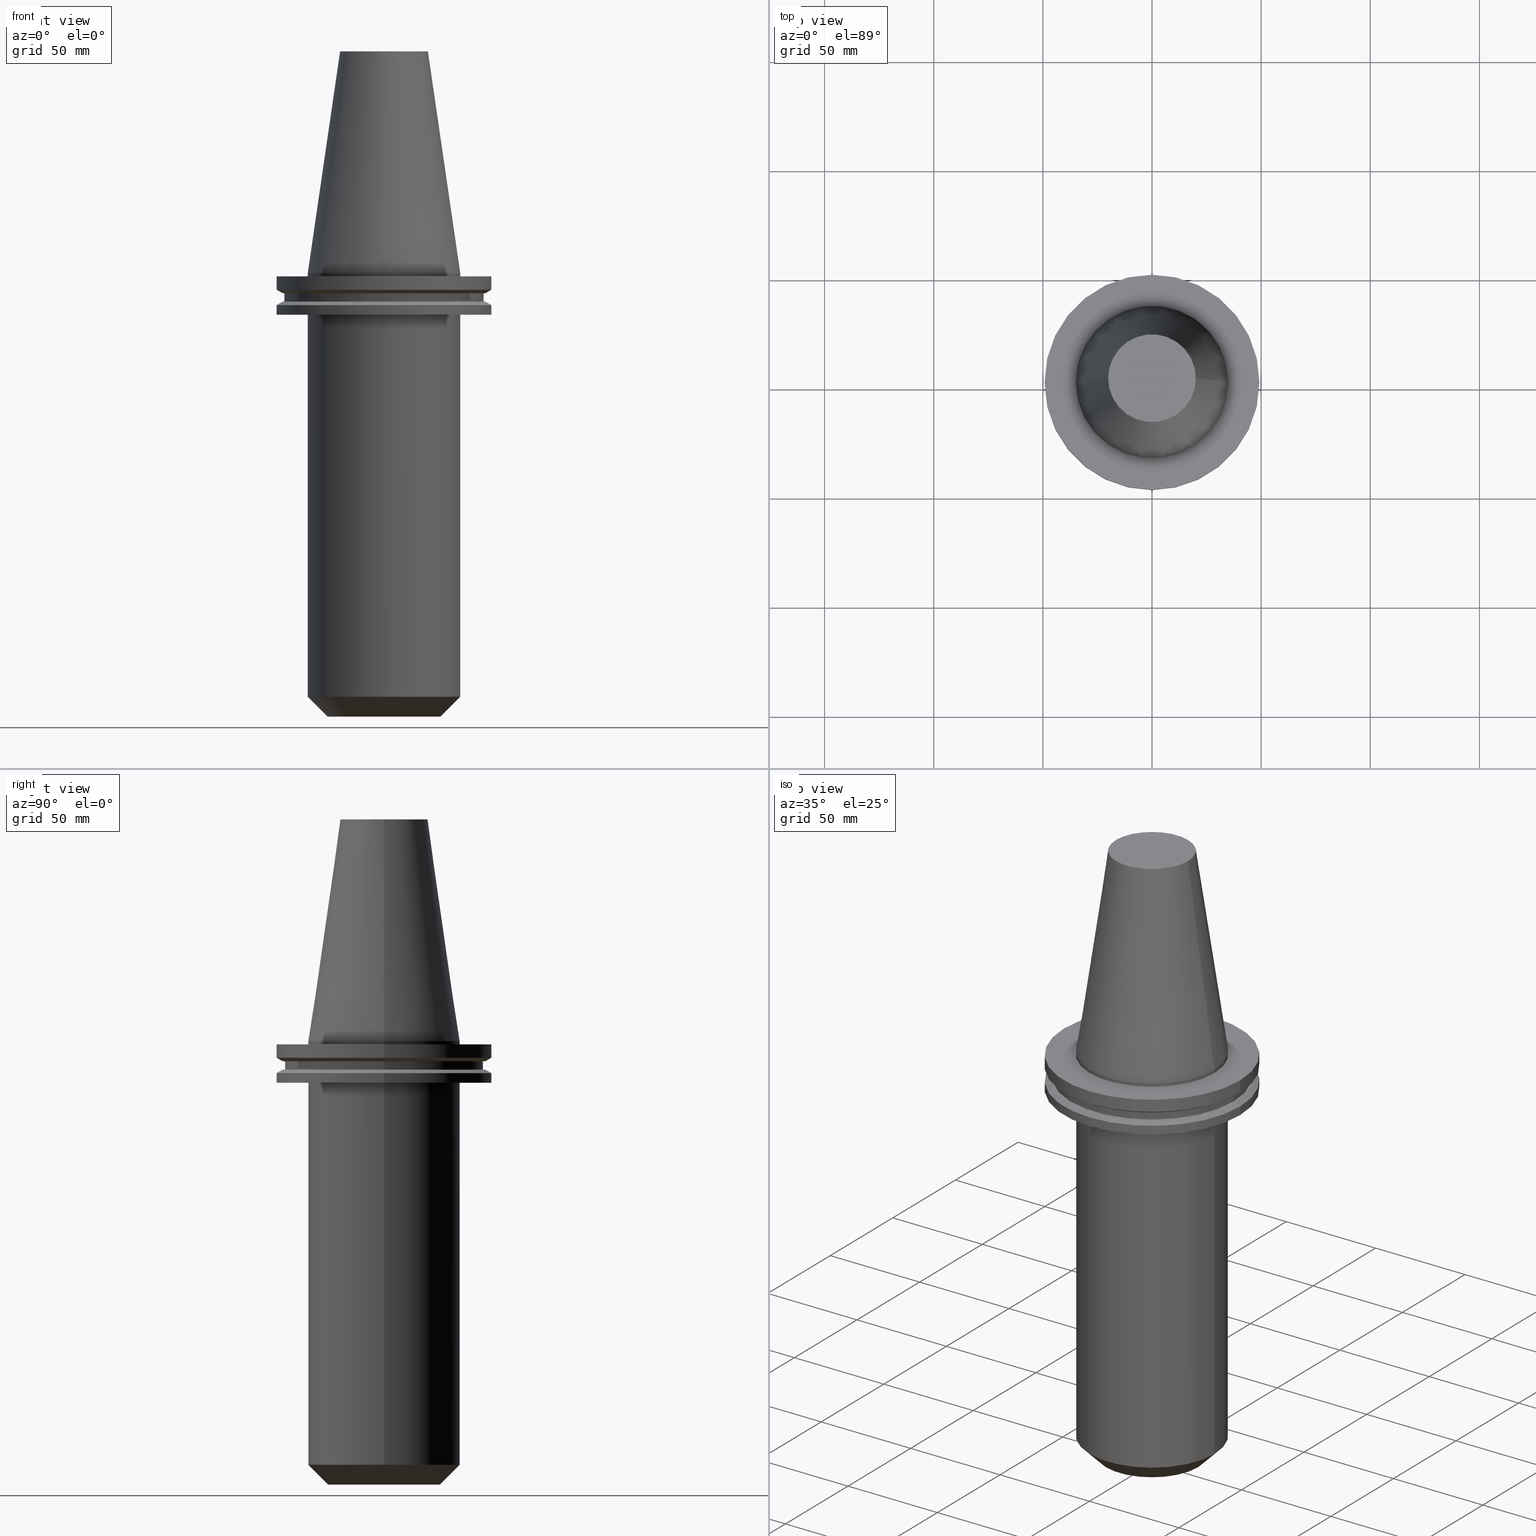
[diagram: canonical four-view strip — front | top / right | iso, engineering-drawing reading convention]
A machine part, canonical four-view strip (front | top / right | iso — engineering-drawing reading convention). The complete STEP part file that produces these views, byte-faithful:
ISO-10303-21;
HEADER;
FILE_DESCRIPTION (( 'STEP AP203' ),
    '1' );
FILE_NAME ('BCV50-EM1_250-8.stp',
    '2022-03-03T16:47:49',
    ( '' ),
    ( '' ),
    'SwSTEP 2.0',
    'SolidWorks 2021',
    '' );
FILE_SCHEMA (( 'CONFIG_CONTROL_DESIGN' ));
ENDSEC;

DATA;
#1 = CARTESIAN_POINT ( 'NONE',  ( 0.000000000000000000, 49.21499999999999631, -1.499999999999992895 ) ) ;
#2 = DIRECTION ( 'NONE',  ( 1.000000000000000000, 0.000000000000000000, 0.000000000000000000 ) ) ;
#3 = ORIENTED_EDGE ( 'NONE', *, *, #560, .T. ) ;
#4 = CIRCLE ( 'NONE', #109, 46.43919780457007818 ) ;
#5 = AXIS2_PLACEMENT_3D ( 'NONE', #182, #305, #774 ) ;
#6 = CIRCLE ( 'NONE', #69, 49.21499999999998920 ) ;
#7 = LINE ( 'NONE', #714, #218 ) ;
#8 = CARTESIAN_POINT ( 'NONE',  ( 0.000000000000000000, 0.000000000000000000, -14.65761014474876944 ) ) ;
#9 = VERTEX_POINT ( 'NONE', #764 ) ;
#10 = ADVANCED_FACE ( 'NONE', ( #756, #405 ), #220, .F. ) ;
#11 = DIRECTION ( 'NONE',  ( 0.000000000000000000, 0.000000000000000000, -1.000000000000000000 ) ) ;
#12 = DIRECTION ( 'NONE',  ( -0.000000000000000000, -0.000000000000000000, 1.000000000000000000 ) ) ;
#13 = ORIENTED_EDGE ( 'NONE', *, *, #155, .T. ) ;
#14 = EDGE_CURVE ( 'NONE', #443, #471, #104, .T. ) ;
#15 = ADVANCED_FACE ( 'NONE', ( #345 ), #564, .T. ) ;
#16 = CYLINDRICAL_SURFACE ( 'NONE', #164, 49.21499999999999631 ) ;
#17 = FACE_OUTER_BOUND ( 'NONE', #364, .T. ) ;
#18 = ORIENTED_EDGE ( 'NONE', *, *, #669, .F. ) ;
#19 = DIRECTION ( 'NONE',  ( 1.000000000000000000, 0.000000000000000000, 0.000000000000000000 ) ) ;
#20 = AXIS2_PLACEMENT_3D ( 'NONE', #544, #84, #506 ) ;
#21 = DIRECTION ( 'NONE',  ( 1.000000000000000000, 0.000000000000000000, 0.000000000000000000 ) ) ;
#22 = CIRCLE ( 'NONE', #184, 34.92500000000000426 ) ;
#23 = ORIENTED_EDGE ( 'NONE', *, *, #773, .F. ) ;
#24 = CIRCLE ( 'NONE', #428, 45.64500000000000313 ) ;
#25 =( NAMED_UNIT ( * ) SI_UNIT ( $, .STERADIAN. ) SOLID_ANGLE_UNIT ( ) );
#26 =( GEOMETRIC_REPRESENTATION_CONTEXT ( 3 ) GLOBAL_UNCERTAINTY_ASSIGNED_CONTEXT ( ( #296 ) ) GLOBAL_UNIT_ASSIGNED_CONTEXT ( ( #139, #83, #25 ) ) REPRESENTATION_CONTEXT ( 'NONE', 'WORKASPACE' ) );
#27 = CC_DESIGN_PERSON_AND_ORGANIZATION_ASSIGNMENT ( #384, #621, ( #576 ) ) ;
#28 = CARTESIAN_POINT ( 'NONE',  ( 0.000000000000000000, 0.000000000000000000, -9.204999999999991189 ) ) ;
#29 = ORIENTED_EDGE ( 'NONE', *, *, #423, .F. ) ;
#30 = CARTESIAN_POINT ( 'NONE',  ( 0.000000000000000000, 0.000000000000000000, 101.5999999999999943 ) ) ;
#31 = DIRECTION ( 'NONE',  ( -0.000000000000000000, -0.000000000000000000, 1.000000000000000000 ) ) ;
#32 = ORIENTED_EDGE ( 'NONE', *, *, #495, .F. ) ;
#33 = DIRECTION ( 'NONE',  ( -0.8660254037844169472, 0.000000000000000000, -0.5000000000000375255 ) ) ;
#34 = DIRECTION ( 'NONE',  ( -0.000000000000000000, -0.000000000000000000, 1.000000000000000000 ) ) ;
#35 = VERTEX_POINT ( 'NONE', #581 ) ;
#36 = DATE_AND_TIME ( #448, #577 ) ;
#37 = AXIS2_PLACEMENT_3D ( 'NONE', #119, #166, #393 ) ;
#38 = CARTESIAN_POINT ( 'NONE',  ( 15.87499999999999289, 0.000000000000000000, 0.000000000000000000 ) ) ;
#39 = AXIS2_PLACEMENT_3D ( 'NONE', #486, #433, #257 ) ;
#40 = ORIENTED_EDGE ( 'NONE', *, *, #97, .T. ) ;
#41 = EDGE_CURVE ( 'NONE', #761, #171, #53, .T. ) ;
#42 = CARTESIAN_POINT ( 'NONE',  ( 49.21500000000000341, 0.000000000000000000, -7.602389855251287187 ) ) ;
#43 = ORIENTED_EDGE ( 'NONE', *, *, #228, .F. ) ;
#44 = PERSON_AND_ORGANIZATION_ROLE ( 'creator' ) ;
#45 = LINE ( 'NONE', #622, #679 ) ;
#46 = ORIENTED_EDGE ( 'NONE', *, *, #529, .T. ) ;
#47 = CIRCLE ( 'NONE', #743, 34.92499999999999005 ) ;
#48 = CALENDAR_DATE ( 2022, 3, 3 ) ;
#49 = DIRECTION ( 'NONE',  ( 1.000000000000000000, 0.000000000000000000, 0.000000000000000000 ) ) ;
#50 = EDGE_LOOP ( 'NONE', ( #141, #187, #768, #711 ) ) ;
#51 = EDGE_LOOP ( 'NONE', ( #503, #175, #403, #23 ) ) ;
#52 = DIRECTION ( 'NONE',  ( -0.000000000000000000, -0.000000000000000000, 1.000000000000000000 ) ) ;
#53 = LINE ( 'NONE', #290, #341 ) ;
#54 = DIRECTION ( 'NONE',  ( 0.000000000000000000, -0.000000000000000000, 1.000000000000000000 ) ) ;
#55 = DIRECTION ( 'NONE',  ( 1.000000000000000000, 0.000000000000000000, 0.000000000000000000 ) ) ;
#56 = EDGE_CURVE ( 'NONE', #369, #674, #716, .T. ) ;
#57 = CYLINDRICAL_SURFACE ( 'NONE', #365, 15.87499999999999289 ) ;
#58 = CIRCLE ( 'NONE', #493, 49.21499999999998920 ) ;
#59 = CARTESIAN_POINT ( 'NONE',  ( 34.92499999999999005, 0.000000000000000000, -1.499999999999987566 ) ) ;
#60 = APPLICATION_CONTEXT ( 'configuration controlled 3d designs of mechanical parts and assemblies' ) ;
#61 = LOCAL_TIME ( 10, 47, 49.00000000000000000, #105 ) ;
#62 = PRODUCT_RELATED_PRODUCT_CATEGORY ( 'detail', '', ( #576 ) ) ;
#63 = DIRECTION ( 'NONE',  ( -0.000000000000000000, -0.000000000000000000, 1.000000000000000000 ) ) ;
#64 = DIRECTION ( 'NONE',  ( -0.1443082272672999988, 0.000000000000000000, -0.9895327864921755756 ) ) ;
#65 = ORIENTED_EDGE ( 'NONE', *, *, #691, .T. ) ;
#66 = DIRECTION ( 'NONE',  ( -0.000000000000000000, -0.000000000000000000, 1.000000000000000000 ) ) ;
#67 = CARTESIAN_POINT ( 'NONE',  ( 46.43919780457007818, 5.857130358318725715E-15, -13.05499999999999794 ) ) ;
#68 = ORIENTED_EDGE ( 'NONE', *, *, #286, .F. ) ;
#69 = AXIS2_PLACEMENT_3D ( 'NONE', #81, #736, #263 ) ;
#70 = CARTESIAN_POINT ( 'NONE',  ( 49.21499999999998920, 6.027099222003697037E-15, -14.65761014474876944 ) ) ;
#71 = CARTESIAN_POINT ( 'NONE',  ( 0.000000000000000000, 0.000000000000000000, 101.5999999999999943 ) ) ;
#72 = AXIS2_PLACEMENT_3D ( 'NONE', #179, #66, #238 ) ;
#73 = EDGE_CURVE ( 'NONE', #138, #452, #444, .T. ) ;
#74 = ADVANCED_FACE ( 'NONE', ( #531 ), #630, .T. ) ;
#75 = EDGE_LOOP ( 'NONE', ( #160, #721, #178, #43 ) ) ;
#76 = AXIS2_PLACEMENT_3D ( 'NONE', #201, #80, #87 ) ;
#77 = CARTESIAN_POINT ( 'NONE',  ( 0.000000000000000000, 0.000000000000000000, -203.1999999999999886 ) ) ;
#78 = DIRECTION ( 'NONE',  ( -0.000000000000000000, -0.000000000000000000, 1.000000000000000000 ) ) ;
#79 = VERTEX_POINT ( 'NONE', #59 ) ;
#80 = DIRECTION ( 'NONE',  ( 0.000000000000000000, 0.000000000000000000, -1.000000000000000000 ) ) ;
#81 = CARTESIAN_POINT ( 'NONE',  ( 0.000000000000000000, 0.000000000000000000, -14.65761014474876944 ) ) ;
#82 = EDGE_LOOP ( 'NONE', ( #678, #697 ) ) ;
#83 =( NAMED_UNIT ( * ) PLANE_ANGLE_UNIT ( ) SI_UNIT ( $, .RADIAN. ) );
#84 = DIRECTION ( 'NONE',  ( -0.000000000000000000, -0.000000000000000000, 1.000000000000000000 ) ) ;
#85 = CONICAL_SURFACE ( 'NONE', #720, 25.82499999999996021, 0.7853981633974509435 ) ;
#86 = ORIENTED_EDGE ( 'NONE', *, *, #73, .T. ) ;
#87 = DIRECTION ( 'NONE',  ( -1.000000000000000000, 0.000000000000000000, -0.000000000000000000 ) ) ;
#88 = DIRECTION ( 'NONE',  ( -0.000000000000000000, -0.000000000000000000, 1.000000000000000000 ) ) ;
#89 = ORIENTED_EDGE ( 'NONE', *, *, #467, .F. ) ;
#90 = DIRECTION ( 'NONE',  ( -0.000000000000000000, -0.000000000000000000, 1.000000000000000000 ) ) ;
#91 = CARTESIAN_POINT ( 'NONE',  ( 0.000000000000000000, 34.92499999999999716, -35.04999999999999716 ) ) ;
#92 = ADVANCED_FACE ( 'NONE', ( #137 ), #134, .T. ) ;
#93 = VERTEX_POINT ( 'NONE', #592 ) ;
#94 = CALENDAR_DATE ( 2022, 3, 3 ) ;
#95 = DIRECTION ( 'NONE',  ( -0.000000000000000000, -0.000000000000000000, 1.000000000000000000 ) ) ;
#96 = ORIENTED_EDGE ( 'NONE', *, *, #582, .F. ) ;
#97 = EDGE_CURVE ( 'NONE', #435, #456, #237, .T. ) ;
#98 = VECTOR ( 'NONE', #143, 1000.000000000000000 ) ;
#99 = SHAPE_DEFINITION_REPRESENTATION ( #466, #126 ) ;
#100 = DIRECTION ( 'NONE',  ( -0.000000000000000000, -0.000000000000000000, 1.000000000000000000 ) ) ;
#101 = EDGE_LOOP ( 'NONE', ( #744, #157, #190, #204 ) ) ;
#102 = DIRECTION ( 'NONE',  ( 1.000000000000000000, 0.000000000000000000, 0.000000000000000000 ) ) ;
#103 = CARTESIAN_POINT ( 'NONE',  ( 45.64500000000000313, 0.000000000000000000, -13.05499999999999794 ) ) ;
#104 = LINE ( 'NONE', #225, #762 ) ;
#105 = COORDINATED_UNIVERSAL_TIME_OFFSET ( 6, 0, .BEHIND. ) ;
#106 = APPROVAL ( #222, 'UNSPECIFIED' ) ;
#107 = CARTESIAN_POINT ( 'NONE',  ( 0.000000000000000000, 0.000000000000000000, -203.1999999999999886 ) ) ;
#108 = DIRECTION ( 'NONE',  ( -1.000000000000000000, 0.000000000000000000, 0.000000000000000000 ) ) ;
#109 = AXIS2_PLACEMENT_3D ( 'NONE', #554, #31, #265 ) ;
#110 = ORIENTED_EDGE ( 'NONE', *, *, #688, .F. ) ;
#111 = CIRCLE ( 'NONE', #758, 34.92499999999999716 ) ;
#112 = DATE_AND_TIME ( #48, #200 ) ;
#113 = CARTESIAN_POINT ( 'NONE',  ( 45.64500000000000313, 0.000000000000000000, -9.204999999999991189 ) ) ;
#114 = DESIGN_CONTEXT ( 'detailed design', #753, 'design' ) ;
#115 = DIRECTION ( 'NONE',  ( 0.7071067811865493491, 0.000000000000000000, 0.7071067811865456854 ) ) ;
#116 = VECTOR ( 'NONE', #414, 1000.000000000000000 ) ;
#117 = ORIENTED_EDGE ( 'NONE', *, *, #461, .F. ) ;
#118 = DIRECTION ( 'NONE',  ( 1.000000000000000000, 0.000000000000000000, 0.000000000000000000 ) ) ;
#119 = CARTESIAN_POINT ( 'NONE',  ( 0.000000000000000000, 45.64500000000000313, -13.05499999999999794 ) ) ;
#120 = DIRECTION ( 'NONE',  ( -0.000000000000000000, -0.000000000000000000, 1.000000000000000000 ) ) ;
#121 = DIRECTION ( 'NONE',  ( 1.000000000000000000, 0.000000000000000000, 0.000000000000000000 ) ) ;
#122 = AXIS2_PLACEMENT_3D ( 'NONE', #385, #700, #633 ) ;
#123 = CARTESIAN_POINT ( 'NONE',  ( 0.000000000000000000, 0.000000000000000000, -19.04999999999999716 ) ) ;
#124 = AXIS2_PLACEMENT_3D ( 'NONE', #376, #34, #373 ) ;
#125 = CARTESIAN_POINT ( 'NONE',  ( -34.92499999999999005, 4.277078946022130098E-15, 101.5999999999999943 ) ) ;
#126 = ADVANCED_BREP_SHAPE_REPRESENTATION ( 'BCV50-EM1_250-8', ( #451, #127 ), #26 ) ;
#127 = AXIS2_PLACEMENT_3D ( 'NONE', #387, #635, #102 ) ;
#128 = VECTOR ( 'NONE', #293, 1000.000000000000000 ) ;
#129 = DIRECTION ( 'NONE',  ( 0.8660254037844169472, 1.060575238724880168E-16, -0.5000000000000375255 ) ) ;
#130 = CARTESIAN_POINT ( 'NONE',  ( 0.000000000000000000, 0.000000000000000000, 101.5999999999999943 ) ) ;
#131 = ORIENTED_EDGE ( 'NONE', *, *, #176, .F. ) ;
#132 = DIRECTION ( 'NONE',  ( -0.000000000000000000, -0.000000000000000000, 1.000000000000000000 ) ) ;
#133 = EDGE_CURVE ( 'NONE', #371, #552, #737, .T. ) ;
#134 = CYLINDRICAL_SURFACE ( 'NONE', #497, 49.21499999999999631 ) ;
#135 = EDGE_LOOP ( 'NONE', ( #520, #707, #751, #542 ) ) ;
#136 = DIRECTION ( 'NONE',  ( -0.000000000000000000, -0.000000000000000000, 1.000000000000000000 ) ) ;
#137 = FACE_OUTER_BOUND ( 'NONE', #739, .T. ) ;
#138 = VERTEX_POINT ( 'NONE', #67 ) ;
#139 =( LENGTH_UNIT ( ) NAMED_UNIT ( * ) SI_UNIT ( .MILLI., .METRE. ) );
#140 = DIRECTION ( 'NONE',  ( -0.000000000000000000, -0.000000000000000000, 1.000000000000000000 ) ) ;
#141 = ORIENTED_EDGE ( 'NONE', *, *, #516, .F. ) ;
#142 = DIRECTION ( 'NONE',  ( 1.000000000000000000, 0.000000000000000000, 0.000000000000000000 ) ) ;
#143 = DIRECTION ( 'NONE',  ( -0.000000000000000000, -0.000000000000000000, 1.000000000000000000 ) ) ;
#144 = EDGE_LOOP ( 'NONE', ( #507, #318 ) ) ;
#145 = CC_DESIGN_DATE_AND_TIME_ASSIGNMENT ( #112, #340, ( #527 ) ) ;
#146 = AXIS2_PLACEMENT_3D ( 'NONE', #123, #354, #591 ) ;
#147 = CYLINDRICAL_SURFACE ( 'NONE', #124, 49.21499999999998920 ) ;
#148 = ORIENTED_EDGE ( 'NONE', *, *, #372, .T. ) ;
#149 = EDGE_CURVE ( 'NONE', #93, #674, #363, .T. ) ;
#150 = CIRCLE ( 'NONE', #246, 25.82499999999996021 ) ;
#151 = CARTESIAN_POINT ( 'NONE',  ( 20.10819343178871321, 3.369811209154858606E-15, 101.5999999999999801 ) ) ;
#152 = ORIENTED_EDGE ( 'NONE', *, *, #330, .T. ) ;
#153 = APPROVAL_DATE_TIME ( #391, #641 ) ;
#154 = EDGE_CURVE ( 'NONE', #199, #761, #699, .T. ) ;
#155 = EDGE_CURVE ( 'NONE', #377, #371, #524, .T. ) ;
#156 = LINE ( 'NONE', #763, #427 ) ;
#157 = ORIENTED_EDGE ( 'NONE', *, *, #690, .F. ) ;
#158 = CALENDAR_DATE ( 2022, 3, 3 ) ;
#159 = CARTESIAN_POINT ( 'NONE',  ( -15.87500000000000711, 1.944126793646424027E-15, -203.1999999999999886 ) ) ;
#160 = ORIENTED_EDGE ( 'NONE', *, *, #436, .F. ) ;
#161 = CIRCLE ( 'NONE', #588, 49.21499999999999631 ) ;
#162 = AXIS2_PLACEMENT_3D ( 'NONE', #189, #662, #121 ) ;
#163 = CARTESIAN_POINT ( 'NONE',  ( 0.000000000000000000, 0.000000000000000000, -14.65761014474876944 ) ) ;
#164 = AXIS2_PLACEMENT_3D ( 'NONE', #672, #254, #498 ) ;
#165 = AXIS2_PLACEMENT_3D ( 'NONE', #183, #424, #55 ) ;
#166 = DIRECTION ( 'NONE',  ( 0.000000000000000000, 0.000000000000000000, -1.000000000000000000 ) ) ;
#167 = EDGE_CURVE ( 'NONE', #674, #256, #652, .T. ) ;
#168 = ADVANCED_FACE ( 'NONE', ( #480 ), #186, .T. ) ;
#169 = DIRECTION ( 'NONE',  ( -0.000000000000000000, -0.000000000000000000, 1.000000000000000000 ) ) ;
#170 = VERTEX_POINT ( 'NONE', #306 ) ;
#171 = VERTEX_POINT ( 'NONE', #727 ) ;
#172 = PERSON_AND_ORGANIZATION ( #657, #575 ) ;
#173 = DIRECTION ( 'NONE',  ( 1.000000000000000000, 0.000000000000000000, 0.000000000000000000 ) ) ;
#174 = ORIENTED_EDGE ( 'NONE', *, *, #422, .T. ) ;
#175 = ORIENTED_EDGE ( 'NONE', *, *, #307, .T. ) ;
#176 = EDGE_CURVE ( 'NONE', #766, #538, #302, .T. ) ;
#177 = CARTESIAN_POINT ( 'NONE',  ( 0.000000000000000000, 0.000000000000000000, -13.05499999999999794 ) ) ;
#178 = ORIENTED_EDGE ( 'NONE', *, *, #267, .T. ) ;
#179 = CARTESIAN_POINT ( 'NONE',  ( 0.000000000000000000, 0.000000000000000000, 101.5999999999999943 ) ) ;
#180 = EDGE_CURVE ( 'NONE', #741, #171, #58, .T. ) ;
#181 = DIRECTION ( 'NONE',  ( 1.000000000000000000, 0.000000000000000000, 0.000000000000000000 ) ) ;
#182 = CARTESIAN_POINT ( 'NONE',  ( 0.000000000000000000, 0.000000000000000000, -9.204999999999991189 ) ) ;
#183 = CARTESIAN_POINT ( 'NONE',  ( 0.000000000000000000, 0.000000000000000000, -35.04999999999999716 ) ) ;
#184 = AXIS2_PLACEMENT_3D ( 'NONE', #528, #404, #185 ) ;
#185 = DIRECTION ( 'NONE',  ( 1.000000000000000000, 0.000000000000000000, 0.000000000000000000 ) ) ;
#186 = CYLINDRICAL_SURFACE ( 'NONE', #722, 34.92499999999999716 ) ;
#187 = ORIENTED_EDGE ( 'NONE', *, *, #368, .T. ) ;
#188 = DIRECTION ( 'NONE',  ( -0.000000000000000000, -0.000000000000000000, 1.000000000000000000 ) ) ;
#189 = CARTESIAN_POINT ( 'NONE',  ( 0.000000000000000000, 0.000000000000000000, -35.04999999999999716 ) ) ;
#190 = ORIENTED_EDGE ( 'NONE', *, *, #467, .T. ) ;
#191 = CARTESIAN_POINT ( 'NONE',  ( -49.21499999999998920, 0.000000000000000000, -14.65761014474876944 ) ) ;
#192 = CARTESIAN_POINT ( 'NONE',  ( -49.21499999999998920, 6.027099222003697037E-15, -19.04999999999999716 ) ) ;
#193 = ORIENTED_EDGE ( 'NONE', *, *, #233, .F. ) ;
#194 = VECTOR ( 'NONE', #637, 1000.000000000000000 ) ;
#195 = LINE ( 'NONE', #191, #457 ) ;
#196 = ADVANCED_FACE ( 'NONE', ( #483 ), #724, .T. ) ;
#197 = DIRECTION ( 'NONE',  ( -0.000000000000000000, -0.000000000000000000, 1.000000000000000000 ) ) ;
#198 = CIRCLE ( 'NONE', #294, 46.43919780457007818 ) ;
#199 = VERTEX_POINT ( 'NONE', #192 ) ;
#200 = LOCAL_TIME ( 10, 47, 49.00000000000000000, #685 ) ;
#201 = CARTESIAN_POINT ( 'NONE',  ( 0.000000000000000000, 20.10819343178871321, 101.5999999999999943 ) ) ;
#202 = DIRECTION ( 'NONE',  ( 1.000000000000000000, 0.000000000000000000, 0.000000000000000000 ) ) ;
#203 = CC_DESIGN_PERSON_AND_ORGANIZATION_ASSIGNMENT ( #759, #276, ( #527 ) ) ;
#204 = ORIENTED_EDGE ( 'NONE', *, *, #210, .T. ) ;
#205 = DIRECTION ( 'NONE',  ( 1.000000000000000000, 0.000000000000000000, 0.000000000000000000 ) ) ;
#206 = ORIENTED_EDGE ( 'NONE', *, *, #582, .T. ) ;
#207 = CYLINDRICAL_SURFACE ( 'NONE', #343, 45.64500000000000313 ) ;
#208 = CARTESIAN_POINT ( 'NONE',  ( 34.92499999999999005, 4.277078946022130098E-15, 0.000000000000000000 ) ) ;
#209 = VERTEX_POINT ( 'NONE', #587 ) ;
#210 = EDGE_CURVE ( 'NONE', #552, #371, #734, .T. ) ;
#211 = CARTESIAN_POINT ( 'NONE',  ( -34.92499999999999716, 4.277078946022130887E-15, -19.04999999999999716 ) ) ;
#212 = ORIENTED_EDGE ( 'NONE', *, *, #349, .T. ) ;
#213 = PERSON_AND_ORGANIZATION ( #657, #575 ) ;
#214 = CARTESIAN_POINT ( 'NONE',  ( 0.000000000000000000, 0.000000000000000000, -9.204999999999991189 ) ) ;
#215 = ORIENTED_EDGE ( 'NONE', *, *, #330, .F. ) ;
#216 = COORDINATED_UNIVERSAL_TIME_OFFSET ( 6, 0, .BEHIND. ) ;
#217 = ADVANCED_FACE ( 'NONE', ( #658 ), #351, .T. ) ;
#218 = VECTOR ( 'NONE', #583, 1000.000000000000000 ) ;
#219 = DIRECTION ( 'NONE',  ( -0.000000000000000000, -0.000000000000000000, 1.000000000000000000 ) ) ;
#220 = PLANE ( 'NONE',  #37 ) ;
#221 = CIRCLE ( 'NONE', #352, 45.64500000000000313 ) ;
#222 = APPROVAL_STATUS ( 'not_yet_approved' ) ;
#223 = FACE_OUTER_BOUND ( 'NONE', #655, .T. ) ;
#224 = CC_DESIGN_SECURITY_CLASSIFICATION ( #527, ( #235 ) ) ;
#225 = CARTESIAN_POINT ( 'NONE',  ( 25.82499999999996021, 0.000000000000000000, -203.1999999999999886 ) ) ;
#226 = DIRECTION ( 'NONE',  ( 0.000000000000000000, -0.000000000000000000, 1.000000000000000000 ) ) ;
#227 = ORIENTED_EDGE ( 'NONE', *, *, #773, .T. ) ;
#228 = EDGE_CURVE ( 'NONE', #346, #401, #24, .T. ) ;
#229 = DIRECTION ( 'NONE',  ( 0.000000000000000000, 0.000000000000000000, -1.000000000000000000 ) ) ;
#230 = ORIENTED_EDGE ( 'NONE', *, *, #636, .F. ) ;
#231 = AXIS2_PLACEMENT_3D ( 'NONE', #643, #11, #474 ) ;
#232 = VECTOR ( 'NONE', #521, 1000.000000000000000 ) ;
#233 = EDGE_CURVE ( 'NONE', #728, #253, #619, .T. ) ;
#234 = PLANE ( 'NONE',  #757 ) ;
#235 = PRODUCT_DEFINITION_FORMATION_WITH_SPECIFIED_SOURCE ( 'ANY', '', #576, .NOT_KNOWN. ) ;
#236 = CARTESIAN_POINT ( 'NONE',  ( 0.000000000000000000, 0.000000000000000000, 101.5999999999999943 ) ) ;
#237 = CIRCLE ( 'NONE', #530, 45.64500000000000313 ) ;
#238 = DIRECTION ( 'NONE',  ( 1.000000000000000000, 0.000000000000000000, 0.000000000000000000 ) ) ;
#239 = DIRECTION ( 'NONE',  ( -0.000000000000000000, -0.000000000000000000, 1.000000000000000000 ) ) ;
#240 = CARTESIAN_POINT ( 'NONE',  ( 15.87499999999999289, 0.000000000000000000, -35.04999999999999716 ) ) ;
#241 = DIRECTION ( 'NONE',  ( 1.000000000000000000, 0.000000000000000000, 0.000000000000000000 ) ) ;
#242 = ORIENTED_EDGE ( 'NONE', *, *, #56, .F. ) ;
#243 = AXIS2_PLACEMENT_3D ( 'NONE', #481, #188, #19 ) ;
#244 = CIRCLE ( 'NONE', #402, 49.21500000000000341 ) ;
#245 = DIRECTION ( 'NONE',  ( 1.000000000000000000, 0.000000000000000000, 0.000000000000000000 ) ) ;
#246 = AXIS2_PLACEMENT_3D ( 'NONE', #543, #136, #309 ) ;
#247 = DIRECTION ( 'NONE',  ( -0.000000000000000000, -0.000000000000000000, 1.000000000000000000 ) ) ;
#248 = ORIENTED_EDGE ( 'NONE', *, *, #604, .F. ) ;
#249 = AXIS2_PLACEMENT_3D ( 'NONE', #460, #701, #108 ) ;
#250 = CIRCLE ( 'NONE', #285, 15.87500000000000711 ) ;
#251 = FACE_BOUND ( 'NONE', #82, .T. ) ;
#252 = CARTESIAN_POINT ( 'NONE',  ( 0.000000000000000000, 0.000000000000000000, 0.000000000000000000 ) ) ;
#253 = VERTEX_POINT ( 'NONE', #546 ) ;
#254 = DIRECTION ( 'NONE',  ( -0.000000000000000000, -0.000000000000000000, 1.000000000000000000 ) ) ;
#255 = FACE_OUTER_BOUND ( 'NONE', #555, .T. ) ;
#256 = VERTEX_POINT ( 'NONE', #208 ) ;
#257 = DIRECTION ( 'NONE',  ( 1.000000000000000000, 0.000000000000000000, 0.000000000000000000 ) ) ;
#258 = CC_DESIGN_PERSON_AND_ORGANIZATION_ASSIGNMENT ( #172, #394, ( #235 ) ) ;
#259 = DIRECTION ( 'NONE',  ( -0.000000000000000000, -0.000000000000000000, 1.000000000000000000 ) ) ;
#260 = ORIENTED_EDGE ( 'NONE', *, *, #154, .T. ) ;
#261 = CIRCLE ( 'NONE', #772, 49.21500000000000341 ) ;
#262 = CARTESIAN_POINT ( 'NONE',  ( -34.92499999999999005, 0.000000000000000000, 0.000000000000000000 ) ) ;
#263 = DIRECTION ( 'NONE',  ( 1.000000000000000000, 0.000000000000000000, 0.000000000000000000 ) ) ;
#264 = ORIENTED_EDGE ( 'NONE', *, *, #412, .F. ) ;
#265 = DIRECTION ( 'NONE',  ( 1.000000000000000000, 0.000000000000000000, 0.000000000000000000 ) ) ;
#266 = ORIENTED_EDGE ( 'NONE', *, *, #176, .T. ) ;
#267 = EDGE_CURVE ( 'NONE', #435, #401, #442, .T. ) ;
#268 = COORDINATED_UNIVERSAL_TIME_OFFSET ( 6, 0, .BEHIND. ) ;
#269 = DIRECTION ( 'NONE',  ( 0.000000000000000000, -0.000000000000000000, 1.000000000000000000 ) ) ;
#270 = VECTOR ( 'NONE', #129, 1000.000000000000114 ) ;
#271 = ORIENTED_EDGE ( 'NONE', *, *, #691, .F. ) ;
#272 = PERSON_AND_ORGANIZATION ( #657, #575 ) ;
#273 = LOCAL_TIME ( 10, 47, 49.00000000000000000, #216 ) ;
#274 = DIRECTION ( 'NONE',  ( -0.000000000000000000, -0.000000000000000000, 1.000000000000000000 ) ) ;
#275 = VERTEX_POINT ( 'NONE', #211 ) ;
#276 = PERSON_AND_ORGANIZATION_ROLE ( 'classification_officer' ) ;
#277 = DIRECTION ( 'NONE',  ( -1.000000000000000000, 0.000000000000000000, 0.000000000000000000 ) ) ;
#278 = EDGE_LOOP ( 'NONE', ( #511, #46 ) ) ;
#279 = PERSON_AND_ORGANIZATION ( #657, #575 ) ;
#280 = ADVANCED_FACE ( 'NONE', ( #17 ), #147, .T. ) ;
#281 = DIRECTION ( 'NONE',  ( -0.000000000000000000, -0.000000000000000000, 1.000000000000000000 ) ) ;
#282 = ORIENTED_EDGE ( 'NONE', *, *, #688, .T. ) ;
#283 = VECTOR ( 'NONE', #536, 1000.000000000000000 ) ;
#284 = CARTESIAN_POINT ( 'NONE',  ( 0.000000000000000000, 0.000000000000000000, -1.499999999999987566 ) ) ;
#285 = AXIS2_PLACEMENT_3D ( 'NONE', #77, #381, #602 ) ;
#286 = EDGE_CURVE ( 'NONE', #426, #209, #437, .T. ) ;
#287 = ORIENTED_EDGE ( 'NONE', *, *, #606, .T. ) ;
#288 = ORIENTED_EDGE ( 'NONE', *, *, #529, .F. ) ;
#289 = LINE ( 'NONE', #395, #304 ) ;
#290 = CARTESIAN_POINT ( 'NONE',  ( 49.21499999999998920, 0.000000000000000000, 101.5999999999999943 ) ) ;
#291 = ADVANCED_FACE ( 'NONE', ( #550 ), #434, .F. ) ;
#292 = DIRECTION ( 'NONE',  ( 1.000000000000000000, 0.000000000000000000, 0.000000000000000000 ) ) ;
#293 = DIRECTION ( 'NONE',  ( -0.000000000000000000, -0.000000000000000000, 1.000000000000000000 ) ) ;
#294 = AXIS2_PLACEMENT_3D ( 'NONE', #382, #557, #202 ) ;
#295 = CARTESIAN_POINT ( 'NONE',  ( 0.000000000000000000, 0.000000000000000000, 101.5999999999999801 ) ) ;
#296 = UNCERTAINTY_MEASURE_WITH_UNIT (LENGTH_MEASURE( 1.000000000000000082E-05 ), #139, 'distance_accuracy_value', 'NONE');
#297 = DIRECTION ( 'NONE',  ( 1.000000000000000000, 0.000000000000000000, 0.000000000000000000 ) ) ;
#298 = DIRECTION ( 'NONE',  ( -0.000000000000000000, -0.000000000000000000, 1.000000000000000000 ) ) ;
#299 = ADVANCED_FACE ( 'NONE', ( #446 ), #676, .F. ) ;
#300 = CARTESIAN_POINT ( 'NONE',  ( -15.87499999999999289, 1.944126793646422449E-15, 0.000000000000000000 ) ) ;
#301 = DIRECTION ( 'NONE',  ( 1.000000000000000000, 0.000000000000000000, 0.000000000000000000 ) ) ;
#302 = LINE ( 'NONE', #644, #283 ) ;
#303 = VERTEX_POINT ( 'NONE', #151 ) ;
#304 = VECTOR ( 'NONE', #281, 1000.000000000000000 ) ;
#305 = DIRECTION ( 'NONE',  ( -0.000000000000000000, -0.000000000000000000, 1.000000000000000000 ) ) ;
#306 = CARTESIAN_POINT ( 'NONE',  ( 15.87500000000000711, 0.000000000000000000, -203.1999999999999886 ) ) ;
#307 = EDGE_CURVE ( 'NONE', #600, #9, #198, .T. ) ;
#308 = ADVANCED_FACE ( 'NONE', ( #310, #615 ), #320, .F. ) ;
#309 = DIRECTION ( 'NONE',  ( 1.000000000000000000, 0.000000000000000000, 0.000000000000000000 ) ) ;
#310 = FACE_OUTER_BOUND ( 'NONE', #315, .T. ) ;
#311 = EDGE_LOOP ( 'NONE', ( #29, #374 ) ) ;
#312 = EDGE_CURVE ( 'NONE', #471, #538, #585, .T. ) ;
#313 = CARTESIAN_POINT ( 'NONE',  ( 0.000000000000000000, 0.000000000000000000, 101.5999999999999943 ) ) ;
#314 = CARTESIAN_POINT ( 'NONE',  ( -49.21499999999999631, 6.027099222003697826E-15, 101.5999999999999943 ) ) ;
#315 = EDGE_LOOP ( 'NONE', ( #271, #110 ) ) ;
#316 = AXIS2_PLACEMENT_3D ( 'NONE', #418, #298, #770 ) ;
#317 = DIRECTION ( 'NONE',  ( -1.000000000000000000, 0.000000000000000000, 0.000000000000000000 ) ) ;
#318 = ORIENTED_EDGE ( 'NONE', *, *, #485, .F. ) ;
#319 = CARTESIAN_POINT ( 'NONE',  ( 0.000000000000000000, 0.000000000000000000, -203.1999999999999886 ) ) ;
#320 = PLANE ( 'NONE',  #455 ) ;
#321 = ORIENTED_EDGE ( 'NONE', *, *, #430, .F. ) ;
#322 = CARTESIAN_POINT ( 'NONE',  ( -49.21500000000000341, 6.027099222003699404E-15, -7.602389855251287187 ) ) ;
#323 = DIRECTION ( 'NONE',  ( 1.000000000000000000, 0.000000000000000000, 0.000000000000000000 ) ) ;
#324 = ORIENTED_EDGE ( 'NONE', *, *, #436, .T. ) ;
#325 = AXIS2_PLACEMENT_3D ( 'NONE', #747, #490, #317 ) ;
#326 = APPROVAL_ROLE ( '' ) ;
#327 = CARTESIAN_POINT ( 'NONE',  ( -45.64500000000000313, 5.589900314708094957E-15, -13.05499999999999794 ) ) ;
#328 = ORIENTED_EDGE ( 'NONE', *, *, #14, .F. ) ;
#329 = ADVANCED_FACE ( 'NONE', ( #370 ), #661, .T. ) ;
#330 = EDGE_CURVE ( 'NONE', #452, #138, #4, .T. ) ;
#331 = SECURITY_CLASSIFICATION_LEVEL ( 'unclassified' ) ;
#332 = CARTESIAN_POINT ( 'NONE',  ( 34.92500000000000426, 0.000000000000000000, -194.0999999999999943 ) ) ;
#333 = ORIENTED_EDGE ( 'NONE', *, *, #417, .F. ) ;
#334 = CC_DESIGN_PERSON_AND_ORGANIZATION_ASSIGNMENT ( #279, #512, ( #235 ) ) ;
#335 = CARTESIAN_POINT ( 'NONE',  ( -46.43919780457007818, 5.687161494633754392E-15, -9.204999999999991189 ) ) ;
#336 = EDGE_LOOP ( 'NONE', ( #702, #692 ) ) ;
#337 = CARTESIAN_POINT ( 'NONE',  ( -15.87499999999999289, 1.944126793646422449E-15, -35.04999999999999716 ) ) ;
#338 = ORIENTED_EDGE ( 'NONE', *, *, #56, .T. ) ;
#339 = CIRCLE ( 'NONE', #441, 20.10819343178871321 ) ;
#340 = DATE_TIME_ROLE ( 'classification_date' ) ;
#341 = VECTOR ( 'NONE', #654, 1000.000000000000000 ) ;
#342 = FACE_BOUND ( 'NONE', #336, .T. ) ;
#343 = AXIS2_PLACEMENT_3D ( 'NONE', #30, #440, #607 ) ;
#344 = ADVANCED_FACE ( 'NONE', ( #255 ), #769, .T. ) ;
#345 = FACE_OUTER_BOUND ( 'NONE', #135, .T. ) ;
#346 = VERTEX_POINT ( 'NONE', #431 ) ;
#347 = LINE ( 'NONE', #70, #270 ) ;
#348 = ORIENTED_EDGE ( 'NONE', *, *, #412, .T. ) ;
#349 = EDGE_CURVE ( 'NONE', #93, #303, #730, .T. ) ;
#350 = DIRECTION ( 'NONE',  ( 1.000000000000000000, 0.000000000000000000, 0.000000000000000000 ) ) ;
#351 = CYLINDRICAL_SURFACE ( 'NONE', #589, 49.21499999999998920 ) ;
#352 = AXIS2_PLACEMENT_3D ( 'NONE', #177, #718, #301 ) ;
#353 = AXIS2_PLACEMENT_3D ( 'NONE', #91, #682, #323 ) ;
#354 = DIRECTION ( 'NONE',  ( -0.000000000000000000, -0.000000000000000000, 1.000000000000000000 ) ) ;
#355 = CC_DESIGN_APPROVAL ( #641, ( #668 ) ) ;
#356 = CARTESIAN_POINT ( 'NONE',  ( 0.000000000000000000, 0.000000000000000000, -13.05499999999999794 ) ) ;
#357 = AXIS2_PLACEMENT_3D ( 'NONE', #478, #775, #297 ) ;
#358 = DIRECTION ( 'NONE',  ( -1.000000000000000000, 0.000000000000000000, -0.000000000000000000 ) ) ;
#359 = DIRECTION ( 'NONE',  ( -0.000000000000000000, -0.000000000000000000, 1.000000000000000000 ) ) ;
#360 = ORIENTED_EDGE ( 'NONE', *, *, #636, .T. ) ;
#361 = CARTESIAN_POINT ( 'NONE',  ( 0.000000000000000000, 46.43919780457007818, -9.204999999999998295 ) ) ;
#362 = EDGE_CURVE ( 'NONE', #171, #741, #6, .T. ) ;
#363 = LINE ( 'NONE', #475, #415 ) ;
#364 = EDGE_LOOP ( 'NONE', ( #496, #705, #397, #432 ) ) ;
#365 = AXIS2_PLACEMENT_3D ( 'NONE', #653, #597, #476 ) ;
#366 = LINE ( 'NONE', #742, #677 ) ;
#367 = CARTESIAN_POINT ( 'NONE',  ( 0.000000000000000000, 0.000000000000000000, 0.000000000000000000 ) ) ;
#368 = EDGE_CURVE ( 'NONE', #303, #256, #156, .T. ) ;
#369 = VERTEX_POINT ( 'NONE', #750 ) ;
#370 = FACE_OUTER_BOUND ( 'NONE', #748, .T. ) ;
#371 = VERTEX_POINT ( 'NONE', #337 ) ;
#372 = EDGE_CURVE ( 'NONE', #538, #275, #760, .T. ) ;
#373 = DIRECTION ( 'NONE',  ( 1.000000000000000000, 0.000000000000000000, 0.000000000000000000 ) ) ;
#374 = ORIENTED_EDGE ( 'NONE', *, *, #154, .F. ) ;
#375 = ADVANCED_FACE ( 'NONE', ( #470 ), #513, .T. ) ;
#376 = CARTESIAN_POINT ( 'NONE',  ( 0.000000000000000000, 0.000000000000000000, 101.5999999999999943 ) ) ;
#377 = VERTEX_POINT ( 'NONE', #159 ) ;
#378 = AXIS2_PLACEMENT_3D ( 'NONE', #713, #12, #181 ) ;
#379 = LOCAL_TIME ( 10, 47, 49.00000000000000000, #463 ) ;
#380 = AXIS2_PLACEMENT_3D ( 'NONE', #252, #533, #2 ) ;
#381 = DIRECTION ( 'NONE',  ( -0.000000000000000000, -0.000000000000000000, 1.000000000000000000 ) ) ;
#382 = CARTESIAN_POINT ( 'NONE',  ( 0.000000000000000000, 0.000000000000000000, -9.204999999999991189 ) ) ;
#383 = ORIENTED_EDGE ( 'NONE', *, *, #449, .T. ) ;
#384 = PERSON_AND_ORGANIZATION ( #657, #575 ) ;
#385 = CARTESIAN_POINT ( 'NONE',  ( 0.000000000000000000, 0.000000000000000000, -9.204999999999991189 ) ) ;
#386 = ORIENTED_EDGE ( 'NONE', *, *, #604, .T. ) ;
#387 = CARTESIAN_POINT ( 'NONE',  ( 0.000000000000000000, 0.000000000000000000, 0.000000000000000000 ) ) ;
#388 = CARTESIAN_POINT ( 'NONE',  ( 0.000000000000000000, 0.000000000000000000, -19.04999999999999716 ) ) ;
#389 = ORIENTED_EDGE ( 'NONE', *, *, #167, .F. ) ;
#390 = APPROVAL ( #628, 'UNSPECIFIED' ) ;
#391 = DATE_AND_TIME ( #158, #379 ) ;
#392 = LINE ( 'NONE', #335, #515 ) ;
#393 = DIRECTION ( 'NONE',  ( -1.000000000000000000, 0.000000000000000000, -0.000000000000000000 ) ) ;
#394 = PERSON_AND_ORGANIZATION_ROLE ( 'creator' ) ;
#395 = CARTESIAN_POINT ( 'NONE',  ( 34.92499999999999005, 0.000000000000000000, 101.5999999999999943 ) ) ;
#396 = EDGE_LOOP ( 'NONE', ( #383, #287 ) ) ;
#397 = ORIENTED_EDGE ( 'NONE', *, *, #362, .F. ) ;
#398 = APPROVAL_DATE_TIME ( #36, #106 ) ;
#399 = ADVANCED_FACE ( 'NONE', ( #223 ), #85, .T. ) ;
#400 = FACE_OUTER_BOUND ( 'NONE', #311, .T. ) ;
#401 = VERTEX_POINT ( 'NONE', #113 ) ;
#402 = AXIS2_PLACEMENT_3D ( 'NONE', #518, #169, #696 ) ;
#403 = ORIENTED_EDGE ( 'NONE', *, *, #680, .T. ) ;
#404 = DIRECTION ( 'NONE',  ( -0.000000000000000000, -0.000000000000000000, 1.000000000000000000 ) ) ;
#405 = FACE_OUTER_BOUND ( 'NONE', #684, .T. ) ;
#406 = PLANE ( 'NONE',  #745 ) ;
#407 = DIRECTION ( 'NONE',  ( -0.000000000000000000, -0.000000000000000000, 1.000000000000000000 ) ) ;
#408 = ADVANCED_FACE ( 'NONE', ( #400, #342 ), #572, .F. ) ;
#409 = CARTESIAN_POINT ( 'NONE',  ( 0.000000000000000000, 0.000000000000000000, -1.499999999999987566 ) ) ;
#410 = CIRCLE ( 'NONE', #146, 34.92499999999999716 ) ;
#411 = CARTESIAN_POINT ( 'NONE',  ( 0.000000000000000000, 0.000000000000000000, 101.5999999999999943 ) ) ;
#412 = EDGE_CURVE ( 'NONE', #426, #728, #244, .T. ) ;
#413 = CARTESIAN_POINT ( 'NONE',  ( -34.92500000000000426, 4.277078946022131676E-15, -194.0999999999999943 ) ) ;
#414 = DIRECTION ( 'NONE',  ( -0.000000000000000000, -0.000000000000000000, 1.000000000000000000 ) ) ;
#415 = VECTOR ( 'NONE', #64, 999.9999999999998863 ) ;
#416 = EDGE_LOOP ( 'NONE', ( #131, #282, #639, #32 ) ) ;
#417 = EDGE_CURVE ( 'NONE', #199, #741, #508, .T. ) ;
#418 = CARTESIAN_POINT ( 'NONE',  ( 0.000000000000000000, 0.000000000000000000, -1.499999999999987566 ) ) ;
#419 = DIRECTION ( 'NONE',  ( 1.000000000000000000, 0.000000000000000000, 0.000000000000000000 ) ) ;
#420 = ORIENTED_EDGE ( 'NONE', *, *, #312, .F. ) ;
#421 = DIRECTION ( 'NONE',  ( -0.000000000000000000, -0.000000000000000000, 1.000000000000000000 ) ) ;
#422 = EDGE_CURVE ( 'NONE', #600, #728, #392, .T. ) ;
#423 = EDGE_CURVE ( 'NONE', #761, #199, #732, .T. ) ;
#424 = DIRECTION ( 'NONE',  ( -0.000000000000000000, -0.000000000000000000, 1.000000000000000000 ) ) ;
#425 = AXIS2_PLACEMENT_3D ( 'NONE', #28, #197, #731 ) ;
#426 = VERTEX_POINT ( 'NONE', #42 ) ;
#427 = VECTOR ( 'NONE', #566, 999.9999999999998863 ) ;
#428 = AXIS2_PLACEMENT_3D ( 'NONE', #673, #259, #502 ) ;
#429 = DIRECTION ( 'NONE',  ( 1.000000000000000000, 0.000000000000000000, 0.000000000000000000 ) ) ;
#430 = EDGE_CURVE ( 'NONE', #79, #256, #289, .T. ) ;
#431 = CARTESIAN_POINT ( 'NONE',  ( -45.64500000000000313, 5.589900314708094957E-15, -9.204999999999991189 ) ) ;
#432 = ORIENTED_EDGE ( 'NONE', *, *, #41, .F. ) ;
#433 = DIRECTION ( 'NONE',  ( -0.000000000000000000, -0.000000000000000000, 1.000000000000000000 ) ) ;
#434 = PLANE ( 'NONE',  #353 ) ;
#435 = VERTEX_POINT ( 'NONE', #103 ) ;
#436 = EDGE_CURVE ( 'NONE', #456, #346, #45, .T. ) ;
#437 = LINE ( 'NONE', #603, #525 ) ;
#438 = EDGE_LOOP ( 'NONE', ( #333, #260, #500, #547 ) ) ;
#439 = CIRCLE ( 'NONE', #598, 25.82499999999996021 ) ;
#440 = DIRECTION ( 'NONE',  ( -0.000000000000000000, -0.000000000000000000, 1.000000000000000000 ) ) ;
#441 = AXIS2_PLACEMENT_3D ( 'NONE', #295, #132, #709 ) ;
#442 = LINE ( 'NONE', #499, #98 ) ;
#443 = VERTEX_POINT ( 'NONE', #510 ) ;
#444 = CIRCLE ( 'NONE', #671, 46.43919780457007818 ) ;
#445 = ADVANCED_FACE ( 'NONE', ( #459 ), #573, .T. ) ;
#446 = FACE_OUTER_BOUND ( 'NONE', #605, .T. ) ;
#447 = ORIENTED_EDGE ( 'NONE', *, *, #307, .F. ) ;
#448 = CALENDAR_DATE ( 2022, 3, 3 ) ;
#449 = EDGE_CURVE ( 'NONE', #209, #253, #161, .T. ) ;
#450 = DIRECTION ( 'NONE',  ( -0.000000000000000000, -0.000000000000000000, 1.000000000000000000 ) ) ;
#451 = MANIFOLD_SOLID_BREP ( 'EM', #590 ) ;
#452 = VERTEX_POINT ( 'NONE', #767 ) ;
#453 = APPROVAL_DATE_TIME ( #749, #390 ) ;
#454 = DIRECTION ( 'NONE',  ( 1.000000000000000000, 0.000000000000000000, 0.000000000000000000 ) ) ;
#455 = AXIS2_PLACEMENT_3D ( 'NONE', #740, #269, #686 ) ;
#456 = VERTEX_POINT ( 'NONE', #327 ) ;
#457 = VECTOR ( 'NONE', #33, 1000.000000000000114 ) ;
#458 = MECHANICAL_CONTEXT ( 'NONE', #60, 'mechanical' ) ;
#459 = FACE_OUTER_BOUND ( 'NONE', #51, .T. ) ;
#460 = CARTESIAN_POINT ( 'NONE',  ( 0.000000000000000000, 0.000000000000000000, 0.000000000000000000 ) ) ;
#461 = EDGE_CURVE ( 'NONE', #401, #346, #648, .T. ) ;
#462 = ORIENTED_EDGE ( 'NONE', *, *, #560, .F. ) ;
#463 = COORDINATED_UNIVERSAL_TIME_OFFSET ( 6, 0, .BEHIND. ) ;
#464 = DIRECTION ( 'NONE',  ( 1.000000000000000000, 0.000000000000000000, 0.000000000000000000 ) ) ;
#465 = EDGE_LOOP ( 'NONE', ( #517, #725, #3, #663 ) ) ;
#466 = PRODUCT_DEFINITION_SHAPE ( 'NONE', 'NONE',  #668 ) ;
#467 = EDGE_CURVE ( 'NONE', #170, #552, #689, .T. ) ;
#468 = EDGE_LOOP ( 'NONE', ( #96, #447 ) ) ;
#469 = CIRCLE ( 'NONE', #706, 34.92499999999999005 ) ;
#470 = FACE_OUTER_BOUND ( 'NONE', #484, .T. ) ;
#471 = VERTEX_POINT ( 'NONE', #332 ) ;
#472 = AXIS2_PLACEMENT_3D ( 'NONE', #388, #52, #629 ) ;
#473 = EDGE_CURVE ( 'NONE', #275, #35, #111, .T. ) ;
#474 = DIRECTION ( 'NONE',  ( -1.000000000000000000, 0.000000000000000000, 0.000000000000000000 ) ) ;
#475 = CARTESIAN_POINT ( 'NONE',  ( -34.92499999999999005, 0.000000000000000000, 0.000000000000000000 ) ) ;
#476 = DIRECTION ( 'NONE',  ( 1.000000000000000000, 0.000000000000000000, 0.000000000000000000 ) ) ;
#477 = CC_DESIGN_PERSON_AND_ORGANIZATION_ASSIGNMENT ( #752, #44, ( #668 ) ) ;
#478 = CARTESIAN_POINT ( 'NONE',  ( 0.000000000000000000, 0.000000000000000000, -19.04999999999999716 ) ) ;
#479 = CARTESIAN_POINT ( 'NONE',  ( -46.43919780457007818, 5.857130358318727293E-15, -9.204999999999991189 ) ) ;
#480 = FACE_OUTER_BOUND ( 'NONE', #465, .T. ) ;
#481 = CARTESIAN_POINT ( 'NONE',  ( 0.000000000000000000, 0.000000000000000000, 0.000000000000000000 ) ) ;
#482 = CC_DESIGN_APPROVAL ( #390, ( #235 ) ) ;
#483 = FACE_OUTER_BOUND ( 'NONE', #631, .T. ) ;
#484 = EDGE_LOOP ( 'NONE', ( #570, #215, #620, #574 ) ) ;
#485 = EDGE_CURVE ( 'NONE', #456, #435, #221, .T. ) ;
#486 = CARTESIAN_POINT ( 'NONE',  ( 0.000000000000000000, 0.000000000000000000, 101.5999999999999943 ) ) ;
#487 = DIRECTION ( 'NONE',  ( 1.000000000000000000, 0.000000000000000000, 0.000000000000000000 ) ) ;
#488 = ORIENTED_EDGE ( 'NONE', *, *, #133, .T. ) ;
#489 = FACE_OUTER_BOUND ( 'NONE', #593, .T. ) ;
#490 = DIRECTION ( 'NONE',  ( 0.000000000000000000, 0.000000000000000000, -1.000000000000000000 ) ) ;
#491 = CIRCLE ( 'NONE', #5, 46.43919780457007818 ) ;
#492 = ORIENTED_EDGE ( 'NONE', *, *, #606, .F. ) ;
#493 = AXIS2_PLACEMENT_3D ( 'NONE', #8, #247, #599 ) ;
#494 = FACE_OUTER_BOUND ( 'NONE', #642, .T. ) ;
#495 = EDGE_CURVE ( 'NONE', #538, #471, #22, .T. ) ;
#496 = ORIENTED_EDGE ( 'NONE', *, *, #423, .T. ) ;
#497 = AXIS2_PLACEMENT_3D ( 'NONE', #411, #647, #487 ) ;
#498 = DIRECTION ( 'NONE',  ( 1.000000000000000000, 0.000000000000000000, 0.000000000000000000 ) ) ;
#499 = CARTESIAN_POINT ( 'NONE',  ( 45.64500000000000313, 0.000000000000000000, 101.5999999999999943 ) ) ;
#500 = ORIENTED_EDGE ( 'NONE', *, *, #41, .T. ) ;
#501 = CARTESIAN_POINT ( 'NONE',  ( -25.82499999999996021, 3.719864652410083281E-15, -203.1999999999999886 ) ) ;
#502 = DIRECTION ( 'NONE',  ( 1.000000000000000000, 0.000000000000000000, 0.000000000000000000 ) ) ;
#503 = ORIENTED_EDGE ( 'NONE', *, *, #422, .F. ) ;
#504 = APPROVAL_STATUS ( 'not_yet_approved' ) ;
#505 = AXIS2_PLACEMENT_3D ( 'NONE', #163, #229, #277 ) ;
#506 = DIRECTION ( 'NONE',  ( 1.000000000000000000, 0.000000000000000000, 0.000000000000000000 ) ) ;
#507 = ORIENTED_EDGE ( 'NONE', *, *, #97, .F. ) ;
#508 = LINE ( 'NONE', #704, #232 ) ;
#509 = EDGE_LOOP ( 'NONE', ( #212, #623 ) ) ;
#510 = CARTESIAN_POINT ( 'NONE',  ( 25.82499999999996021, 0.000000000000000000, -203.1999999999999886 ) ) ;
#511 = ORIENTED_EDGE ( 'NONE', *, *, #690, .T. ) ;
#512 = PERSON_AND_ORGANIZATION_ROLE ( 'design_supplier' ) ;
#513 = CONICAL_SURFACE ( 'NONE', #505, 49.21499999999998920, 1.047197551196554333 ) ;
#514 = CARTESIAN_POINT ( 'NONE',  ( 0.000000000000000000, 49.21499999999998920, -19.04999999999999716 ) ) ;
#515 = VECTOR ( 'NONE', #569, 1000.000000000000000 ) ;
#516 = EDGE_CURVE ( 'NONE', #303, #93, #339, .T. ) ;
#517 = ORIENTED_EDGE ( 'NONE', *, *, #372, .F. ) ;
#518 = CARTESIAN_POINT ( 'NONE',  ( 0.000000000000000000, 0.000000000000000000, -7.602389855251287187 ) ) ;
#519 = ORIENTED_EDGE ( 'NONE', *, *, #680, .F. ) ;
#520 = ORIENTED_EDGE ( 'NONE', *, *, #368, .F. ) ;
#521 = DIRECTION ( 'NONE',  ( -0.000000000000000000, -0.000000000000000000, 1.000000000000000000 ) ) ;
#522 = ORIENTED_EDGE ( 'NONE', *, *, #312, .T. ) ;
#523 = FACE_OUTER_BOUND ( 'NONE', #596, .T. ) ;
#524 = LINE ( 'NONE', #300, #128 ) ;
#525 = VECTOR ( 'NONE', #78, 1000.000000000000000 ) ;
#526 = CC_DESIGN_DATE_AND_TIME_ASSIGNMENT ( #579, #703, ( #668 ) ) ;
#527 = SECURITY_CLASSIFICATION ( '', '', #331 ) ;
#528 = CARTESIAN_POINT ( 'NONE',  ( 0.000000000000000000, 0.000000000000000000, -194.0999999999999943 ) ) ;
#529 = EDGE_CURVE ( 'NONE', #377, #170, #539, .T. ) ;
#530 = AXIS2_PLACEMENT_3D ( 'NONE', #719, #239, #584 ) ;
#531 = FACE_OUTER_BOUND ( 'NONE', #416, .T. ) ;
#532 = CARTESIAN_POINT ( 'NONE',  ( 0.000000000000000000, 0.000000000000000000, -203.1999999999999886 ) ) ;
#533 = DIRECTION ( 'NONE',  ( -0.000000000000000000, -0.000000000000000000, 1.000000000000000000 ) ) ;
#534 = ORIENTED_EDGE ( 'NONE', *, *, #286, .T. ) ;
#535 = FACE_OUTER_BOUND ( 'NONE', #468, .T. ) ;
#536 = DIRECTION ( 'NONE',  ( -0.7071067811865493491, 8.659560562354955045E-17, 0.7071067811865456854 ) ) ;
#537 = ADVANCED_FACE ( 'NONE', ( #523 ), #640, .T. ) ;
#538 = VERTEX_POINT ( 'NONE', #413 ) ;
#539 = CIRCLE ( 'NONE', #710, 15.87500000000000711 ) ;
#540 = DIRECTION ( 'NONE',  ( 0.000000000000000000, 0.000000000000000000, -1.000000000000000000 ) ) ;
#541 = DIRECTION ( 'NONE',  ( -0.000000000000000000, -0.000000000000000000, 1.000000000000000000 ) ) ;
#542 = ORIENTED_EDGE ( 'NONE', *, *, #167, .T. ) ;
#543 = CARTESIAN_POINT ( 'NONE',  ( 0.000000000000000000, 0.000000000000000000, -203.1999999999999886 ) ) ;
#544 = CARTESIAN_POINT ( 'NONE',  ( 0.000000000000000000, 0.000000000000000000, -194.0999999999999943 ) ) ;
#545 = ADVANCED_FACE ( 'NONE', ( #723 ), #57, .F. ) ;
#546 = CARTESIAN_POINT ( 'NONE',  ( -49.21499999999999631, 6.027099222003697826E-15, -1.499999999999987566 ) ) ;
#547 = ORIENTED_EDGE ( 'NONE', *, *, #180, .F. ) ;
#548 = CARTESIAN_POINT ( 'NONE',  ( 0.000000000000000000, 0.000000000000000000, -7.602389855251287187 ) ) ;
#549 = ADVANCED_FACE ( 'NONE', ( #535, #251 ), #406, .F. ) ;
#550 = FACE_OUTER_BOUND ( 'NONE', #567, .T. ) ;
#551 = APPROVAL_PERSON_ORGANIZATION ( #213, #106, #746 ) ;
#552 = VERTEX_POINT ( 'NONE', #240 ) ;
#553 = CYLINDRICAL_SURFACE ( 'NONE', #683, 34.92499999999999005 ) ;
#554 = CARTESIAN_POINT ( 'NONE',  ( 0.000000000000000000, 0.000000000000000000, -13.05499999999999794 ) ) ;
#555 = EDGE_LOOP ( 'NONE', ( #206, #174, #264, #519 ) ) ;
#556 = FACE_OUTER_BOUND ( 'NONE', #616, .T. ) ;
#557 = DIRECTION ( 'NONE',  ( -0.000000000000000000, -0.000000000000000000, 1.000000000000000000 ) ) ;
#558 = ORIENTED_EDGE ( 'NONE', *, *, #133, .F. ) ;
#559 = EDGE_CURVE ( 'NONE', #138, #171, #347, .T. ) ;
#560 = EDGE_CURVE ( 'NONE', #471, #35, #7, .T. ) ;
#561 = CALENDAR_DATE ( 2022, 3, 3 ) ;
#562 = DIRECTION ( 'NONE',  ( 1.000000000000000000, 0.000000000000000000, 0.000000000000000000 ) ) ;
#563 = ORIENTED_EDGE ( 'NONE', *, *, #650, .F. ) ;
#564 = CONICAL_SURFACE ( 'NONE', #249, 34.92499999999999005, 0.1448138465474119452 ) ;
#565 = APPROVAL_PERSON_ORGANIZATION ( #272, #641, #624 ) ;
#566 = DIRECTION ( 'NONE',  ( 0.1443082272672999988, 1.767266086135277066E-17, -0.9895327864921755756 ) ) ;
#567 = EDGE_LOOP ( 'NONE', ( #627, #558 ) ) ;
#568 = APPLICATION_PROTOCOL_DEFINITION ( 'international standard', 'config_control_design', 1994, #753 ) ;
#569 = DIRECTION ( 'NONE',  ( -0.8660254037844273833, 1.060575238724893110E-16, 0.5000000000000195399 ) ) ;
#570 = ORIENTED_EDGE ( 'NONE', *, *, #559, .F. ) ;
#571 = CIRCLE ( 'NONE', #243, 34.92499999999999005 ) ;
#572 = PLANE ( 'NONE',  #664 ) ;
#573 = CONICAL_SURFACE ( 'NONE', #122, 46.43919780457007818, 1.047197551196575205 ) ;
#574 = ORIENTED_EDGE ( 'NONE', *, *, #180, .T. ) ;
#575 = ORGANIZATION ( 'UNSPECIFIED', 'UNSPECIFIED', '' ) ;
#576 = PRODUCT ( 'BCV50-EM1_250-8', 'BCV50-EM1_250-8', '', ( #458 ) ) ;
#577 = LOCAL_TIME ( 10, 47, 49.00000000000000000, #268 ) ;
#578 = ORIENTED_EDGE ( 'NONE', *, *, #362, .T. ) ;
#579 = DATE_AND_TIME ( #94, #273 ) ;
#580 = CARTESIAN_POINT ( 'NONE',  ( -34.92499999999999716, 4.277078946022130887E-15, 101.5999999999999943 ) ) ;
#581 = CARTESIAN_POINT ( 'NONE',  ( 34.92499999999999716, 0.000000000000000000, -19.04999999999999716 ) ) ;
#582 = EDGE_CURVE ( 'NONE', #9, #600, #491, .T. ) ;
#583 = DIRECTION ( 'NONE',  ( -0.000000000000000000, -0.000000000000000000, 1.000000000000000000 ) ) ;
#584 = DIRECTION ( 'NONE',  ( 1.000000000000000000, 0.000000000000000000, 0.000000000000000000 ) ) ;
#585 = CIRCLE ( 'NONE', #20, 34.92500000000000426 ) ;
#586 = DIRECTION ( 'NONE',  ( -0.000000000000000000, -0.000000000000000000, 1.000000000000000000 ) ) ;
#587 = CARTESIAN_POINT ( 'NONE',  ( 49.21499999999999631, 0.000000000000000000, -1.499999999999987566 ) ) ;
#588 = AXIS2_PLACEMENT_3D ( 'NONE', #284, #95, #173 ) ;
#589 = AXIS2_PLACEMENT_3D ( 'NONE', #71, #541, #205 ) ;
#590 = CLOSED_SHELL ( 'NONE', ( #299, #399, #715, #708, #344, #196, #329, #280, #537, #618, #15, #698, #168, #408, #217, #375, #10, #765, #549, #445, #92, #610, #754, #74, #308, #545, #291 ) ) ;
#591 = DIRECTION ( 'NONE',  ( 1.000000000000000000, 0.000000000000000000, 0.000000000000000000 ) ) ;
#592 = CARTESIAN_POINT ( 'NONE',  ( -20.10819343178871321, 0.000000000000000000, 101.5999999999999801 ) ) ;
#593 = EDGE_LOOP ( 'NONE', ( #386, #338, #18, #321 ) ) ;
#594 = FACE_OUTER_BOUND ( 'NONE', #50, .T. ) ;
#595 = DIRECTION ( 'NONE',  ( -0.000000000000000000, -0.000000000000000000, 1.000000000000000000 ) ) ;
#596 = EDGE_LOOP ( 'NONE', ( #522, #148, #563, #462 ) ) ;
#597 = DIRECTION ( 'NONE',  ( -0.000000000000000000, -0.000000000000000000, 1.000000000000000000 ) ) ;
#598 = AXIS2_PLACEMENT_3D ( 'NONE', #319, #90, #726 ) ;
#599 = DIRECTION ( 'NONE',  ( 1.000000000000000000, 0.000000000000000000, 0.000000000000000000 ) ) ;
#600 = VERTEX_POINT ( 'NONE', #479 ) ;
#601 = VECTOR ( 'NONE', #100, 1000.000000000000000 ) ;
#602 = DIRECTION ( 'NONE',  ( 1.000000000000000000, 0.000000000000000000, 0.000000000000000000 ) ) ;
#603 = CARTESIAN_POINT ( 'NONE',  ( 49.21499999999999631, 0.000000000000000000, 101.5999999999999943 ) ) ;
#604 = EDGE_CURVE ( 'NONE', #79, #369, #469, .T. ) ;
#605 = EDGE_LOOP ( 'NONE', ( #288, #13, #488, #89 ) ) ;
#606 = EDGE_CURVE ( 'NONE', #253, #209, #645, .T. ) ;
#607 = DIRECTION ( 'NONE',  ( 1.000000000000000000, 0.000000000000000000, 0.000000000000000000 ) ) ;
#608 = DIRECTION ( 'NONE',  ( 1.000000000000000000, 0.000000000000000000, 0.000000000000000000 ) ) ;
#609 = EDGE_LOOP ( 'NONE', ( #248, #230 ) ) ;
#610 = ADVANCED_FACE ( 'NONE', ( #712, #656 ), #234, .F. ) ;
#611 = CARTESIAN_POINT ( 'NONE',  ( -49.21499999999998920, 6.027099222003697037E-15, -14.65761014474876944 ) ) ;
#612 = DIRECTION ( 'NONE',  ( -0.000000000000000000, -0.000000000000000000, 1.000000000000000000 ) ) ;
#613 = ORIENTED_EDGE ( 'NONE', *, *, #73, .F. ) ;
#614 = APPLICATION_PROTOCOL_DEFINITION ( 'international standard', 'config_control_design', 1994, #60 ) ;
#615 = FACE_BOUND ( 'NONE', #278, .T. ) ;
#616 = EDGE_LOOP ( 'NONE', ( #242, #360, #670, #389 ) ) ;
#617 = PLANE ( 'NONE',  #76 ) ;
#618 = ADVANCED_FACE ( 'NONE', ( #594 ), #717, .T. ) ;
#619 = LINE ( 'NONE', #314, #649 ) ;
#620 = ORIENTED_EDGE ( 'NONE', *, *, #738, .T. ) ;
#621 = PERSON_AND_ORGANIZATION_ROLE ( 'design_owner' ) ;
#622 = CARTESIAN_POINT ( 'NONE',  ( -45.64500000000000313, 5.589900314708094957E-15, 101.5999999999999943 ) ) ;
#623 = ORIENTED_EDGE ( 'NONE', *, *, #516, .T. ) ;
#624 = APPROVAL_ROLE ( '' ) ;
#625 = AXIS2_PLACEMENT_3D ( 'NONE', #236, #407, #419 ) ;
#626 = DIRECTION ( 'NONE',  ( -0.000000000000000000, -0.000000000000000000, 1.000000000000000000 ) ) ;
#627 = ORIENTED_EDGE ( 'NONE', *, *, #210, .F. ) ;
#628 = APPROVAL_STATUS ( 'not_yet_approved' ) ;
#629 = DIRECTION ( 'NONE',  ( 1.000000000000000000, 0.000000000000000000, 0.000000000000000000 ) ) ;
#630 = CONICAL_SURFACE ( 'NONE', #378, 25.82499999999996021, 0.7853981633974509435 ) ;
#631 = EDGE_LOOP ( 'NONE', ( #40, #324, #117, #634 ) ) ;
#632 = PERSON_AND_ORGANIZATION ( #657, #575 ) ;
#633 = DIRECTION ( 'NONE',  ( 1.000000000000000000, 0.000000000000000000, 0.000000000000000000 ) ) ;
#634 = ORIENTED_EDGE ( 'NONE', *, *, #267, .F. ) ;
#635 = DIRECTION ( 'NONE',  ( 0.000000000000000000, 0.000000000000000000, 1.000000000000000000 ) ) ;
#636 = EDGE_CURVE ( 'NONE', #369, #79, #47, .T. ) ;
#637 = DIRECTION ( 'NONE',  ( -0.000000000000000000, -0.000000000000000000, 1.000000000000000000 ) ) ;
#638 = ORIENTED_EDGE ( 'NONE', *, *, #449, .F. ) ;
#639 = ORIENTED_EDGE ( 'NONE', *, *, #14, .T. ) ;
#640 = CYLINDRICAL_SURFACE ( 'NONE', #72, 34.92499999999999716 ) ;
#641 = APPROVAL ( #504, 'UNSPECIFIED' ) ;
#642 = EDGE_LOOP ( 'NONE', ( #348, #733, #638, #68 ) ) ;
#643 = CARTESIAN_POINT ( 'NONE',  ( 0.000000000000000000, 0.000000000000000000, 0.000000000000000000 ) ) ;
#644 = CARTESIAN_POINT ( 'NONE',  ( -25.82499999999996021, 3.162650358798034491E-15, -203.1999999999999886 ) ) ;
#645 = CIRCLE ( 'NONE', #316, 49.21499999999999631 ) ;
#646 = CARTESIAN_POINT ( 'NONE',  ( 0.000000000000000000, 0.000000000000000000, -1.499999999999987566 ) ) ;
#647 = DIRECTION ( 'NONE',  ( -0.000000000000000000, -0.000000000000000000, 1.000000000000000000 ) ) ;
#648 = CIRCLE ( 'NONE', #694, 45.64500000000000313 ) ;
#649 = VECTOR ( 'NONE', #88, 1000.000000000000000 ) ;
#650 = EDGE_CURVE ( 'NONE', #35, #275, #410, .T. ) ;
#651 = APPROVAL_PERSON_ORGANIZATION ( #632, #390, #326 ) ;
#652 = CIRCLE ( 'NONE', #380, 34.92499999999999005 ) ;
#653 = CARTESIAN_POINT ( 'NONE',  ( 0.000000000000000000, 0.000000000000000000, 0.000000000000000000 ) ) ;
#654 = DIRECTION ( 'NONE',  ( -0.000000000000000000, -0.000000000000000000, 1.000000000000000000 ) ) ;
#655 = EDGE_LOOP ( 'NONE', ( #65, #266, #420, #328 ) ) ;
#656 = FACE_OUTER_BOUND ( 'NONE', #396, .T. ) ;
#657 = PERSON ( 'UNSPECIFIED', 'UNSPECIFIED', 'UNSPECIFIED', ('UNSPECIFIED'), ('UNSPECIFIED'), ('UNSPECIFIED') ) ;
#658 = FACE_OUTER_BOUND ( 'NONE', #438, .T. ) ;
#659 = ORIENTED_EDGE ( 'NONE', *, *, #738, .F. ) ;
#660 = DIRECTION ( 'NONE',  ( -0.000000000000000000, -0.000000000000000000, 1.000000000000000000 ) ) ;
#661 = CONICAL_SURFACE ( 'NONE', #325, 49.21499999999998920, 1.047197551196554333 ) ;
#662 = DIRECTION ( 'NONE',  ( -0.000000000000000000, -0.000000000000000000, 1.000000000000000000 ) ) ;
#663 = ORIENTED_EDGE ( 'NONE', *, *, #473, .F. ) ;
#664 = AXIS2_PLACEMENT_3D ( 'NONE', #514, #226, #464 ) ;
#665 = CARTESIAN_POINT ( 'NONE',  ( 49.21499999999998920, 0.000000000000000000, -19.04999999999999716 ) ) ;
#666 = CC_DESIGN_APPROVAL ( #106, ( #527 ) ) ;
#667 = CARTESIAN_POINT ( 'NONE',  ( 0.000000000000000000, 0.000000000000000000, 101.5999999999999801 ) ) ;
#668 = PRODUCT_DEFINITION ( 'UNKNOWN', '', #235, #114 ) ;
#669 = EDGE_CURVE ( 'NONE', #256, #674, #571, .T. ) ;
#670 = ORIENTED_EDGE ( 'NONE', *, *, #430, .T. ) ;
#671 = AXIS2_PLACEMENT_3D ( 'NONE', #356, #595, #241 ) ;
#672 = CARTESIAN_POINT ( 'NONE',  ( 0.000000000000000000, 0.000000000000000000, 101.5999999999999943 ) ) ;
#673 = CARTESIAN_POINT ( 'NONE',  ( 0.000000000000000000, 0.000000000000000000, -9.204999999999991189 ) ) ;
#674 = VERTEX_POINT ( 'NONE', #262 ) ;
#675 = FACE_OUTER_BOUND ( 'NONE', #509, .T. ) ;
#676 = CYLINDRICAL_SURFACE ( 'NONE', #695, 15.87499999999999289 ) ;
#677 = VECTOR ( 'NONE', #681, 1000.000000000000000 ) ;
#678 = ORIENTED_EDGE ( 'NONE', *, *, #461, .T. ) ;
#679 = VECTOR ( 'NONE', #626, 1000.000000000000000 ) ;
#680 = EDGE_CURVE ( 'NONE', #9, #426, #366, .T. ) ;
#681 = DIRECTION ( 'NONE',  ( 0.8660254037844273833, 0.000000000000000000, 0.5000000000000195399 ) ) ;
#682 = DIRECTION ( 'NONE',  ( 0.000000000000000000, -0.000000000000000000, 1.000000000000000000 ) ) ;
#683 = AXIS2_PLACEMENT_3D ( 'NONE', #313, #421, #429 ) ;
#684 = EDGE_LOOP ( 'NONE', ( #152, #86 ) ) ;
#685 = COORDINATED_UNIVERSAL_TIME_OFFSET ( 6, 0, .BEHIND. ) ;
#686 = DIRECTION ( 'NONE',  ( 1.000000000000000000, 0.000000000000000000, 0.000000000000000000 ) ) ;
#687 = ORIENTED_EDGE ( 'NONE', *, *, #559, .T. ) ;
#688 = EDGE_CURVE ( 'NONE', #766, #443, #439, .T. ) ;
#689 = LINE ( 'NONE', #38, #601 ) ;
#690 = EDGE_CURVE ( 'NONE', #170, #377, #250, .T. ) ;
#691 = EDGE_CURVE ( 'NONE', #443, #766, #150, .T. ) ;
#692 = ORIENTED_EDGE ( 'NONE', *, *, #473, .T. ) ;
#693 = AXIS2_PLACEMENT_3D ( 'NONE', #667, #140, #608 ) ;
#694 = AXIS2_PLACEMENT_3D ( 'NONE', #214, #450, #562 ) ;
#695 = AXIS2_PLACEMENT_3D ( 'NONE', #367, #612, #21 ) ;
#696 = DIRECTION ( 'NONE',  ( 1.000000000000000000, 0.000000000000000000, 0.000000000000000000 ) ) ;
#697 = ORIENTED_EDGE ( 'NONE', *, *, #228, .T. ) ;
#698 = ADVANCED_FACE ( 'NONE', ( #675 ), #617, .F. ) ;
#699 = CIRCLE ( 'NONE', #357, 49.21499999999998920 ) ;
#700 = DIRECTION ( 'NONE',  ( -0.000000000000000000, -0.000000000000000000, 1.000000000000000000 ) ) ;
#701 = DIRECTION ( 'NONE',  ( 0.000000000000000000, 0.000000000000000000, -1.000000000000000000 ) ) ;
#702 = ORIENTED_EDGE ( 'NONE', *, *, #650, .T. ) ;
#703 = DATE_TIME_ROLE ( 'creation_date' ) ;
#704 = CARTESIAN_POINT ( 'NONE',  ( -49.21499999999998920, 6.027099222003697037E-15, 101.5999999999999943 ) ) ;
#705 = ORIENTED_EDGE ( 'NONE', *, *, #417, .T. ) ;
#706 = AXIS2_PLACEMENT_3D ( 'NONE', #409, #586, #292 ) ;
#707 = ORIENTED_EDGE ( 'NONE', *, *, #349, .F. ) ;
#708 = ADVANCED_FACE ( 'NONE', ( #494 ), #16, .T. ) ;
#709 = DIRECTION ( 'NONE',  ( 1.000000000000000000, 0.000000000000000000, 0.000000000000000000 ) ) ;
#710 = AXIS2_PLACEMENT_3D ( 'NONE', #532, #63, #350 ) ;
#711 = ORIENTED_EDGE ( 'NONE', *, *, #149, .F. ) ;
#712 = FACE_BOUND ( 'NONE', #609, .T. ) ;
#713 = CARTESIAN_POINT ( 'NONE',  ( 0.000000000000000000, 0.000000000000000000, -203.1999999999999886 ) ) ;
#714 = CARTESIAN_POINT ( 'NONE',  ( 34.92499999999999716, 0.000000000000000000, 101.5999999999999943 ) ) ;
#715 = ADVANCED_FACE ( 'NONE', ( #489 ), #729, .T. ) ;
#716 = LINE ( 'NONE', #125, #116 ) ;
#717 = CONICAL_SURFACE ( 'NONE', #231, 34.92499999999999005, 0.1448138465474119452 ) ;
#718 = DIRECTION ( 'NONE',  ( -0.000000000000000000, -0.000000000000000000, 1.000000000000000000 ) ) ;
#719 = CARTESIAN_POINT ( 'NONE',  ( 0.000000000000000000, 0.000000000000000000, -13.05499999999999794 ) ) ;
#720 = AXIS2_PLACEMENT_3D ( 'NONE', #107, #274, #49 ) ;
#721 = ORIENTED_EDGE ( 'NONE', *, *, #485, .T. ) ;
#722 = AXIS2_PLACEMENT_3D ( 'NONE', #130, #359, #771 ) ;
#723 = FACE_OUTER_BOUND ( 'NONE', #101, .T. ) ;
#724 = CYLINDRICAL_SURFACE ( 'NONE', #625, 45.64500000000000313 ) ;
#725 = ORIENTED_EDGE ( 'NONE', *, *, #495, .T. ) ;
#726 = DIRECTION ( 'NONE',  ( 1.000000000000000000, 0.000000000000000000, 0.000000000000000000 ) ) ;
#727 = CARTESIAN_POINT ( 'NONE',  ( 49.21499999999998920, 0.000000000000000000, -14.65761014474876944 ) ) ;
#728 = VERTEX_POINT ( 'NONE', #322 ) ;
#729 = CYLINDRICAL_SURFACE ( 'NONE', #39, 34.92499999999999005 ) ;
#730 = CIRCLE ( 'NONE', #693, 20.10819343178871321 ) ;
#731 = DIRECTION ( 'NONE',  ( 1.000000000000000000, 0.000000000000000000, 0.000000000000000000 ) ) ;
#732 = CIRCLE ( 'NONE', #472, 49.21499999999998920 ) ;
#733 = ORIENTED_EDGE ( 'NONE', *, *, #233, .T. ) ;
#734 = CIRCLE ( 'NONE', #162, 15.87499999999999289 ) ;
#735 = FACE_OUTER_BOUND ( 'NONE', #75, .T. ) ;
#736 = DIRECTION ( 'NONE',  ( -0.000000000000000000, -0.000000000000000000, 1.000000000000000000 ) ) ;
#737 = CIRCLE ( 'NONE', #165, 15.87499999999999289 ) ;
#738 = EDGE_CURVE ( 'NONE', #452, #741, #195, .T. ) ;
#739 = EDGE_LOOP ( 'NONE', ( #193, #227, #534, #492 ) ) ;
#740 = CARTESIAN_POINT ( 'NONE',  ( 0.000000000000000000, 15.87500000000000711, -203.1999999999999886 ) ) ;
#741 = VERTEX_POINT ( 'NONE', #611 ) ;
#742 = CARTESIAN_POINT ( 'NONE',  ( 46.43919780457007818, 0.000000000000000000, -9.204999999999991189 ) ) ;
#743 = AXIS2_PLACEMENT_3D ( 'NONE', #646, #120, #245 ) ;
#744 = ORIENTED_EDGE ( 'NONE', *, *, #155, .F. ) ;
#745 = AXIS2_PLACEMENT_3D ( 'NONE', #361, #54, #118 ) ;
#746 = APPROVAL_ROLE ( '' ) ;
#747 = CARTESIAN_POINT ( 'NONE',  ( 0.000000000000000000, 0.000000000000000000, -14.65761014474876944 ) ) ;
#748 = EDGE_LOOP ( 'NONE', ( #613, #687, #578, #659 ) ) ;
#749 = DATE_AND_TIME ( #561, #61 ) ;
#750 = CARTESIAN_POINT ( 'NONE',  ( -34.92499999999999005, 4.277078946022130098E-15, -1.499999999999987566 ) ) ;
#751 = ORIENTED_EDGE ( 'NONE', *, *, #149, .T. ) ;
#752 = PERSON_AND_ORGANIZATION ( #657, #575 ) ;
#753 = APPLICATION_CONTEXT ( 'configuration controlled 3d designs of mechanical parts and assemblies' ) ;
#754 = ADVANCED_FACE ( 'NONE', ( #556 ), #553, .T. ) ;
#755 = CARTESIAN_POINT ( 'NONE',  ( 0.000000000000000000, 0.000000000000000000, -19.04999999999999716 ) ) ;
#756 = FACE_BOUND ( 'NONE', #144, .T. ) ;
#757 = AXIS2_PLACEMENT_3D ( 'NONE', #1, #540, #358 ) ;
#758 = AXIS2_PLACEMENT_3D ( 'NONE', #755, #219, #454 ) ;
#759 = PERSON_AND_ORGANIZATION ( #657, #575 ) ;
#760 = LINE ( 'NONE', #580, #194 ) ;
#761 = VERTEX_POINT ( 'NONE', #665 ) ;
#762 = VECTOR ( 'NONE', #115, 1000.000000000000000 ) ;
#763 = CARTESIAN_POINT ( 'NONE',  ( 34.92499999999999005, 4.277078946022130098E-15, 0.000000000000000000 ) ) ;
#764 = CARTESIAN_POINT ( 'NONE',  ( 46.43919780457007818, 0.000000000000000000, -9.204999999999991189 ) ) ;
#765 = ADVANCED_FACE ( 'NONE', ( #735 ), #207, .T. ) ;
#766 = VERTEX_POINT ( 'NONE', #501 ) ;
#767 = CARTESIAN_POINT ( 'NONE',  ( -46.43919780457007818, 0.000000000000000000, -13.05499999999999794 ) ) ;
#768 = ORIENTED_EDGE ( 'NONE', *, *, #669, .T. ) ;
#769 = CONICAL_SURFACE ( 'NONE', #425, 46.43919780457007818, 1.047197551196575205 ) ;
#770 = DIRECTION ( 'NONE',  ( 1.000000000000000000, 0.000000000000000000, 0.000000000000000000 ) ) ;
#771 = DIRECTION ( 'NONE',  ( 1.000000000000000000, 0.000000000000000000, 0.000000000000000000 ) ) ;
#772 = AXIS2_PLACEMENT_3D ( 'NONE', #548, #660, #142 ) ;
#773 = EDGE_CURVE ( 'NONE', #728, #426, #261, .T. ) ;
#774 = DIRECTION ( 'NONE',  ( 1.000000000000000000, 0.000000000000000000, 0.000000000000000000 ) ) ;
#775 = DIRECTION ( 'NONE',  ( -0.000000000000000000, -0.000000000000000000, 1.000000000000000000 ) ) ;
ENDSEC;
END-ISO-10303-21;
